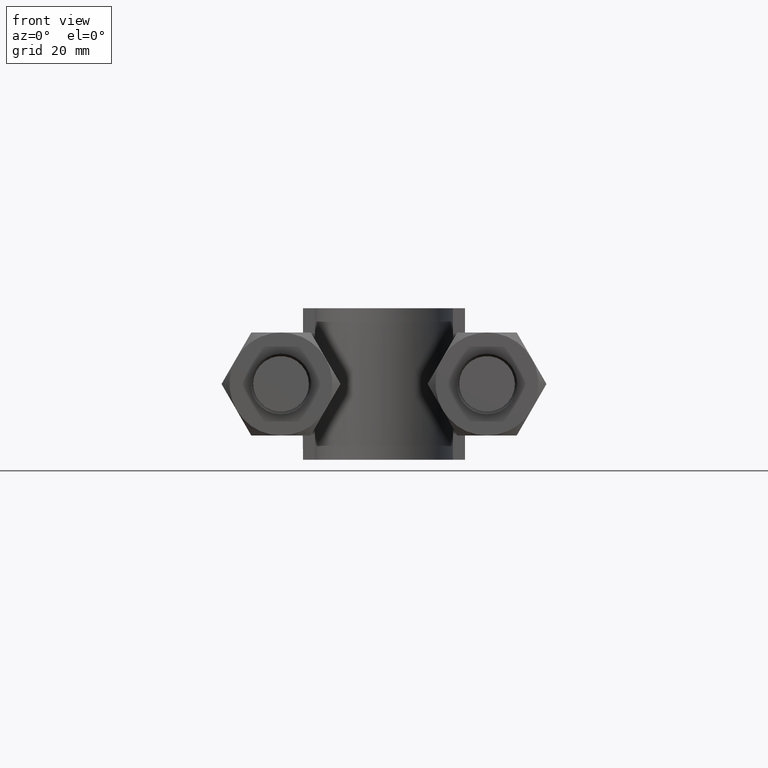
[diagram: clean part render]
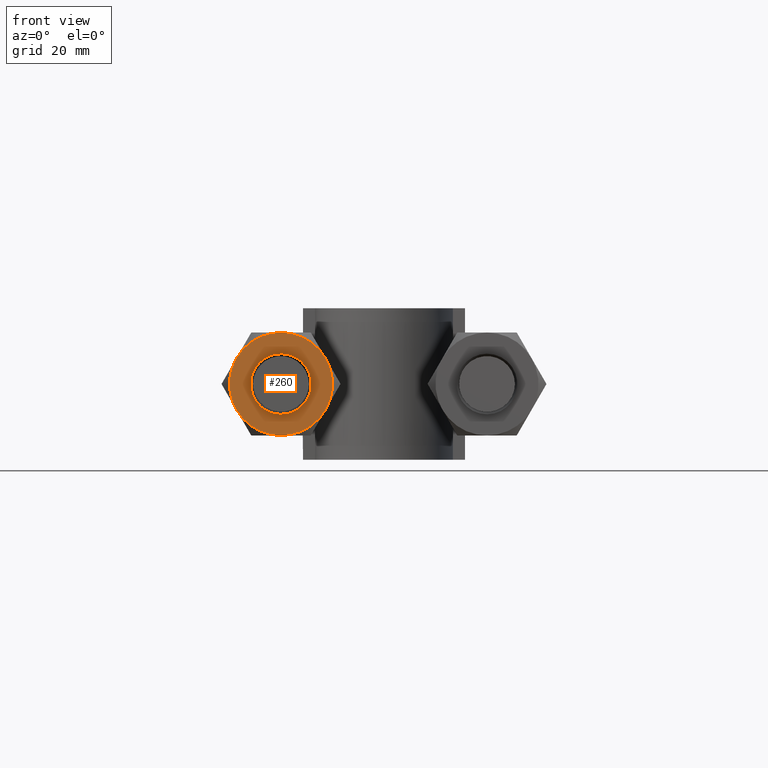
[diagram: same view with one face highlighted and labeled with its STEP entity id]
A machine part, front view. The second image highlights one B-rep face of the part: STEP entity #260.
In plain terms, the highlighted planar face has unit normal (-0, 1, -0).
Its self-contained STEP definition (entity closure, byte-faithful):
#260 = ADVANCED_FACE( '', ( #390, #391 ), #392, .F. );
#390 = FACE_OUTER_BOUND( '', #1469, .T. );
#391 = FACE_BOUND( '', #1470, .T. );
#392 = PLANE( '', #1471 );
#1469 = EDGE_LOOP( '', ( #1828, #1829, #1830, #1831, #1832, #1833 ) );
#1470 = EDGE_LOOP( '', ( #1834 ) );
#1471 = AXIS2_PLACEMENT_3D( '', #1835, #1836, #1837 );
#1828 = ORIENTED_EDGE( '', *, *, #2170, .F. );
#1829 = ORIENTED_EDGE( '', *, *, #2175, .F. );
#1830 = ORIENTED_EDGE( '', *, *, #2152, .F. );
#1831 = ORIENTED_EDGE( '', *, *, #2167, .F. );
#1832 = ORIENTED_EDGE( '', *, *, #2137, .F. );
#1833 = ORIENTED_EDGE( '', *, *, #2176, .F. );
#1834 = ORIENTED_EDGE( '', *, *, #2177, .T. );
#1835 = CARTESIAN_POINT( '', ( -17.0000000000000, 20.0000000000000, -6.36480885357616E-015 ) );
#1836 = DIRECTION( '', ( -7.49830360911066E-032, 1.00000000000000, -3.06151588455594E-016 ) );
#1837 = DIRECTION( '', ( 1.00000000000000, 1.09476442525376E-047, -2.44921270764475E-016 ) );
#2137 = EDGE_CURVE( '', #2320, #2322, #2323, .T. );
#2152 = EDGE_CURVE( '', #2343, #2350, #2351, .T. );
#2167 = EDGE_CURVE( '', #2322, #2343, #2376, .T. );
#2170 = EDGE_CURVE( '', #2380, #2325, #2381, .T. );
#2175 = EDGE_CURVE( '', #2350, #2380, #2387, .T. );
#2176 = EDGE_CURVE( '', #2325, #2320, #2388, .T. );
#2177 = EDGE_CURVE( '', #2389, #2389, #2390, .T. );
#2320 = VERTEX_POINT( '', #2768 );
#2322 = VERTEX_POINT( '', #2775 );
#2323 = CIRCLE( '', #2776, 8.50000000000000 );
#2325 = VERTEX_POINT( '', #2783 );
#2343 = VERTEX_POINT( '', #2816 );
#2350 = VERTEX_POINT( '', #2835 );
#2351 = CIRCLE( '', #2836, 8.50000000000000 );
#2376 = CIRCLE( '', #2871, 8.50000000000000 );
#2380 = VERTEX_POINT( '', #2880 );
#2381 = CIRCLE( '', #2881, 8.50000000000000 );
#2387 = CIRCLE( '', #2894, 8.50000000000000 );
#2388 = CIRCLE( '', #2895, 8.50000000000000 );
#2389 = VERTEX_POINT( '', #2896 );
#2390 = CIRCLE( '', #2897, 5.00000000000000 );
#2768 = CARTESIAN_POINT( '', ( -9.63878406783227, 20.0000000000000, -4.25000000000001 ) );
#2775 = CARTESIAN_POINT( '', ( -17.0000000000000, 20.0000000000000, -8.50000000000001 ) );
#2776 = AXIS2_PLACEMENT_3D( '', #3162, #3163, #3164 );
#2783 = CARTESIAN_POINT( '', ( -9.63878406783228, 20.0000000000000, 4.24999999999999 ) );
#2816 = CARTESIAN_POINT( '', ( -24.3612159321677, 20.0000000000000, -4.25000000000001 ) );
#2835 = CARTESIAN_POINT( '', ( -24.3612159321677, 20.0000000000000, 4.24999999999999 ) );
#2836 = AXIS2_PLACEMENT_3D( '', #3178, #3179, #3180 );
#2871 = AXIS2_PLACEMENT_3D( '', #3210, #3211, #3212 );
#2880 = CARTESIAN_POINT( '', ( -17.0000000000000, 20.0000000000000, 8.49999999999999 ) );
#2881 = AXIS2_PLACEMENT_3D( '', #3216, #3217, #3218 );
#2894 = AXIS2_PLACEMENT_3D( '', #3224, #3225, #3226 );
#2895 = AXIS2_PLACEMENT_3D( '', #3227, #3228, #3229 );
#2896 = CARTESIAN_POINT( '', ( -17.0000000000000, 20.0000000000000, 4.99999999999999 ) );
#2897 = AXIS2_PLACEMENT_3D( '', #3230, #3231, #3232 );
#3162 = CARTESIAN_POINT( '', ( -17.0000000000000, 20.0000000000000, -6.36480885357616E-015 ) );
#3163 = DIRECTION( '', ( -7.49830360911067E-032, 1.00000000000000, -3.06151588455594E-016 ) );
#3164 = DIRECTION( '', ( 0.000000000000000, 3.06151588455594E-016, 1.00000000000000 ) );
#3178 = CARTESIAN_POINT( '', ( -17.0000000000000, 20.0000000000000, -6.36480885357616E-015 ) );
#3179 = DIRECTION( '', ( -7.49830360911067E-032, 1.00000000000000, -3.06151588455594E-016 ) );
#3180 = DIRECTION( '', ( 0.000000000000000, 3.06151588455594E-016, 1.00000000000000 ) );
#3210 = CARTESIAN_POINT( '', ( -17.0000000000000, 20.0000000000000, -6.36480885357616E-015 ) );
#3211 = DIRECTION( '', ( -7.49830360911067E-032, 1.00000000000000, -3.06151588455594E-016 ) );
#3212 = DIRECTION( '', ( 0.000000000000000, 3.06151588455594E-016, 1.00000000000000 ) );
#3216 = CARTESIAN_POINT( '', ( -17.0000000000000, 20.0000000000000, -6.36480885357616E-015 ) );
#3217 = DIRECTION( '', ( -7.49830360911067E-032, 1.00000000000000, -3.06151588455594E-016 ) );
#3218 = DIRECTION( '', ( 0.000000000000000, 3.06151588455594E-016, 1.00000000000000 ) );
#3224 = CARTESIAN_POINT( '', ( -17.0000000000000, 20.0000000000000, -6.36480885357616E-015 ) );
#3225 = DIRECTION( '', ( -7.49830360911067E-032, 1.00000000000000, -3.06151588455594E-016 ) );
#3226 = DIRECTION( '', ( 0.000000000000000, 3.06151588455594E-016, 1.00000000000000 ) );
#3227 = CARTESIAN_POINT( '', ( -17.0000000000000, 20.0000000000000, -6.36480885357616E-015 ) );
#3228 = DIRECTION( '', ( -7.49830360911067E-032, 1.00000000000000, -3.06151588455594E-016 ) );
#3229 = DIRECTION( '', ( 0.000000000000000, 3.06151588455594E-016, 1.00000000000000 ) );
#3230 = CARTESIAN_POINT( '', ( -17.0000000000000, 20.0000000000000, -6.36480885357616E-015 ) );
#3231 = DIRECTION( '', ( -7.49830360911067E-032, 1.00000000000000, -3.06151588455594E-016 ) );
#3232 = DIRECTION( '', ( 0.000000000000000, 3.06151588455594E-016, 1.00000000000000 ) );